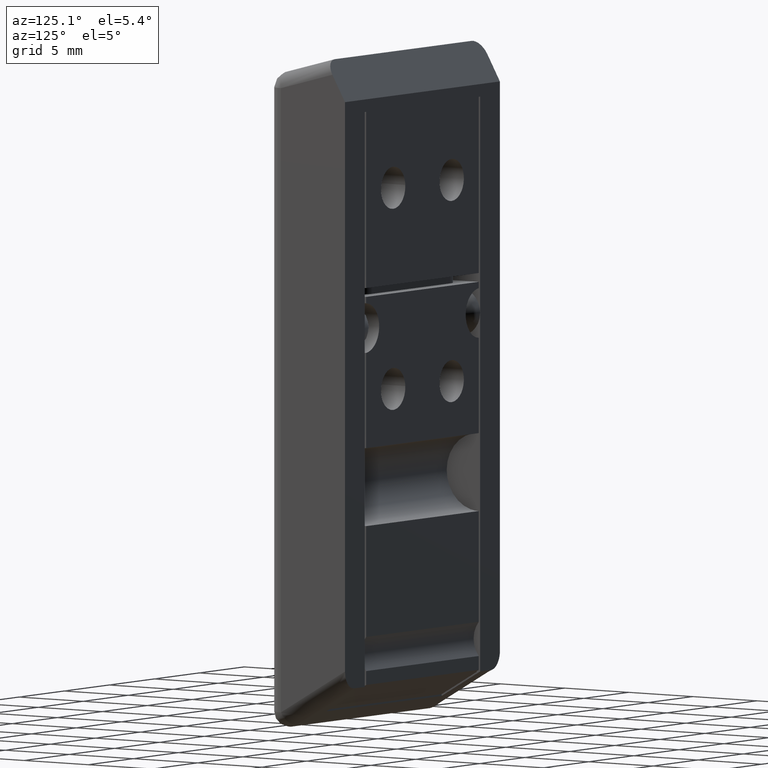
[diagram: clean part render]
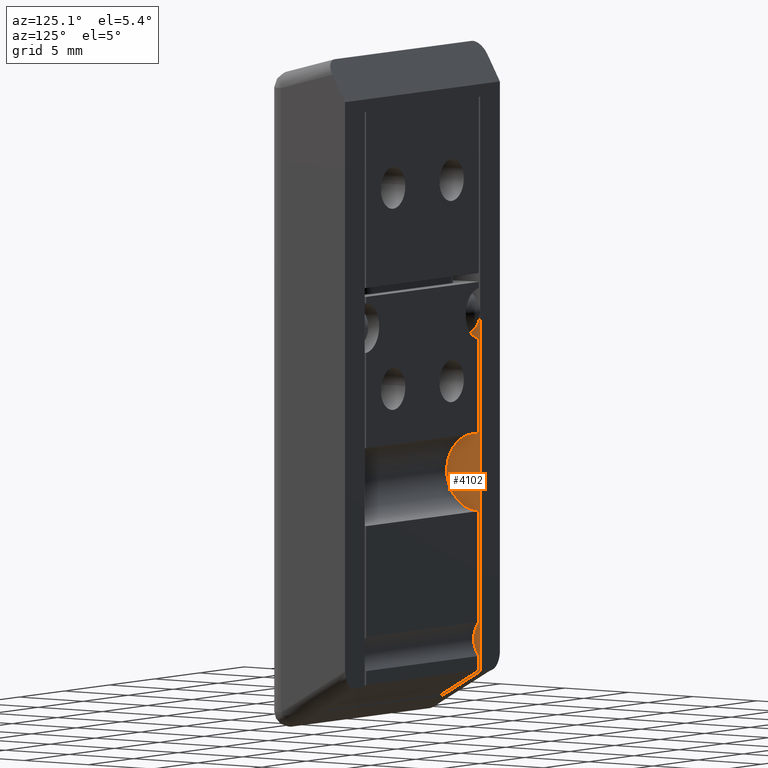
[diagram: same view with one face highlighted and labeled with its STEP entity id]
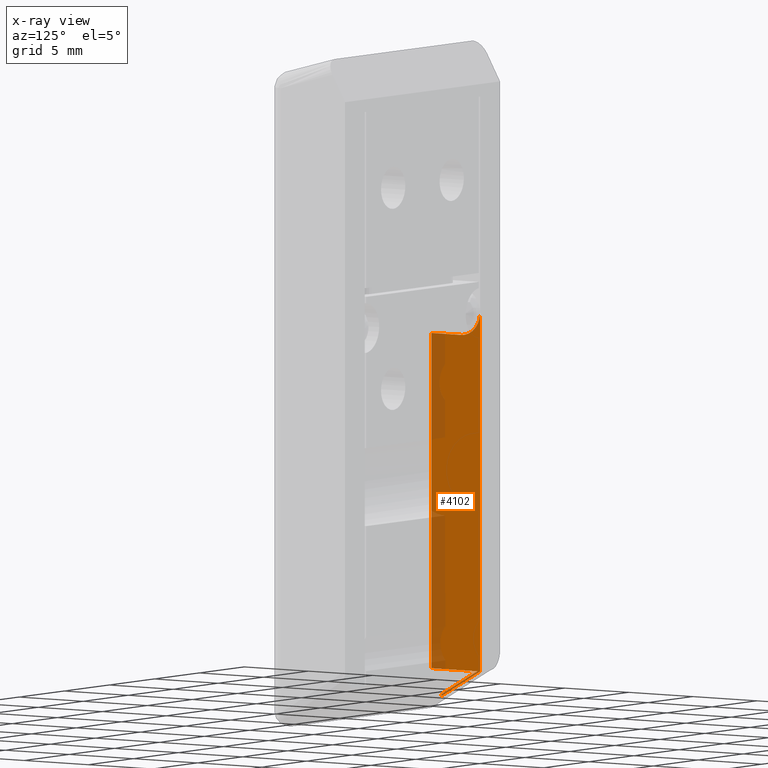
[diagram: x-ray of the same camera — body ghosted, the highlighted face saturated]
A machine part, auxiliary view. The second image highlights one B-rep face of the part: STEP entity #4102.
The next image is the same camera in x-ray: the body ghosted, the highlighted face saturated — about 20% of this face is hidden behind the body in this view.
In plain terms, the highlighted face is a freeform B-spline surface patch.
Its self-contained STEP definition (entity closure, byte-faithful):
#2244=CARTESIAN_POINT('',(-6.400000000000000,-3.0,1.115469207054490));
#2245=VERTEX_POINT('',#2244);
#2246=CARTESIAN_POINT('',(-6.400000000000000,-3.0,1.000000000000066));
#2247=VERTEX_POINT('',#2246);
#2248=CARTESIAN_POINT('',(-6.400000000000000,-3.0,1.115469207054490));
#2249=CARTESIAN_POINT('',(-6.400000000000000,-3.0,1.000000000000066));
#2250=QUASI_UNIFORM_CURVE('',1,(#2248,#2249),.UNSPECIFIED.,.F.,.U.);
#2251=EDGE_CURVE('',#2245,#2247,#2250,.T.);
#2295=CARTESIAN_POINT('',(-6.400000000000000,-0.200004400209750,2.732000000000000));
#2296=VERTEX_POINT('',#2295);
#2297=CARTESIAN_POINT('',(-6.400000000000000,-0.200004400209750,2.732000000000000));
#2298=CARTESIAN_POINT('',(-6.400000000000000,-3.0,1.115469207054490));
#2299=QUASI_UNIFORM_CURVE('',1,(#2297,#2298),.UNSPECIFIED.,.F.,.U.);
#2300=EDGE_CURVE('',#2296,#2245,#2299,.T.);
#2774=CARTESIAN_POINT('',(-6.400000000000000,-1.499999999999946,24.231999999999999));
#2775=VERTEX_POINT('',#2774);
#2793=CARTESIAN_POINT('',(-6.400000000000000,-1.136868E-013,25.731999999999999));
#2794=VERTEX_POINT('',#2793);
#2795=CARTESIAN_POINT('',(-6.400000000000000,-1.136868E-013,25.731999999999999));
#2796=CARTESIAN_POINT('',(-6.400000000000000,5.399327E-014,24.231999999999996));
#2797=CARTESIAN_POINT('',(-6.400000000000000,-1.499999999999946,24.231999999999999));
#2805=(BOUNDED_CURVE()B_SPLINE_CURVE(2,(#2795,#2796,#2797),.UNSPECIFIED.,.F.,.U.)CURVE()GEOMETRIC_REPRESENTATION_ITEM()QUASI_UNIFORM_CURVE()RATIONAL_B_SPLINE_CURVE((1.0,0.707106781186548,1.0))REPRESENTATION_ITEM(''));
#2806=EDGE_CURVE('',#2794,#2775,#2805,.T.);
#2842=CARTESIAN_POINT('',(-6.400000000000000,-3.800000000000000,24.231999999999999));
#2843=VERTEX_POINT('',#2842);
#2844=CARTESIAN_POINT('',(-6.400000000000000,-3.800000000000000,24.231999999999999));
#2845=CARTESIAN_POINT('',(-6.400000000000000,-1.499999999999946,24.231999999999999));
#2846=QUASI_UNIFORM_CURVE('',1,(#2844,#2845),.UNSPECIFIED.,.F.,.U.);
#2847=EDGE_CURVE('',#2843,#2775,#2846,.T.);
#3945=CARTESIAN_POINT('',(-6.400000000000000,0.0,2.732000000000000));
#3946=VERTEX_POINT('',#3945);
#3952=CARTESIAN_POINT('',(-6.400000000000000,-3.0,1.000000000000066));
#3953=CARTESIAN_POINT('',(-6.400000000000000,0.0,2.732000000000000));
#3954=QUASI_UNIFORM_CURVE('',1,(#3952,#3953),.UNSPECIFIED.,.F.,.U.);
#3955=EDGE_CURVE('',#2247,#3946,#3954,.T.);
#3971=CARTESIAN_POINT('',(-6.400000000000000,-1.136868E-013,25.731999999999999));
#3972=CARTESIAN_POINT('',(-6.400000000000000,0.0,2.732000000000000));
#3973=QUASI_UNIFORM_CURVE('',1,(#3971,#3972),.UNSPECIFIED.,.F.,.U.);
#3974=EDGE_CURVE('',#2794,#3946,#3973,.T.);
#4077=CARTESIAN_POINT('',(-6.400000000000000,-3.989809956963181,26.967363816397231));
#4078=CARTESIAN_POINT('',(-6.400000000000000,0.189810092861771,26.967363816397231));
#4079=CARTESIAN_POINT('',(-6.400000000000000,-3.989809956963181,-0.235364037518465));
#4080=CARTESIAN_POINT('',(-6.400000000000000,0.189810092861771,-0.235364037518465));
#4081=B_SPLINE_SURFACE_WITH_KNOTS('',1,1,((#4077,#4079),(#4078,#4080)),.UNSPECIFIED.,.F.,.F.,.U.,(2,2),(2,2),(0.0,4.179620049824953),(0.0,27.202727853915690),.UNSPECIFIED.);
#4082=ORIENTED_EDGE('',*,*,#3955,.T.);
#4083=ORIENTED_EDGE('',*,*,#3974,.F.);
#4084=ORIENTED_EDGE('',*,*,#2806,.T.);
#4085=ORIENTED_EDGE('',*,*,#2847,.F.);
#4086=CARTESIAN_POINT('',(-6.400000000000000,-3.800000000000000,2.732000000000000));
#4087=VERTEX_POINT('',#4086);
#4088=CARTESIAN_POINT('',(-6.400000000000000,-3.800000000000000,2.732000000000000));
#4089=CARTESIAN_POINT('',(-6.400000000000000,-3.800000000000000,24.231999999999999));
#4090=QUASI_UNIFORM_CURVE('',1,(#4088,#4089),.UNSPECIFIED.,.F.,.U.);
#4091=EDGE_CURVE('',#4087,#2843,#4090,.T.);
#4092=ORIENTED_EDGE('',*,*,#4091,.F.);
#4093=CARTESIAN_POINT('',(-6.400000000000000,-0.200004400209750,2.732000000000000));
#4094=CARTESIAN_POINT('',(-6.400000000000000,-3.800000000000000,2.732000000000000));
#4095=QUASI_UNIFORM_CURVE('',1,(#4093,#4094),.UNSPECIFIED.,.F.,.U.);
#4096=EDGE_CURVE('',#2296,#4087,#4095,.T.);
#4097=ORIENTED_EDGE('',*,*,#4096,.F.);
#4098=ORIENTED_EDGE('',*,*,#2300,.T.);
#4099=ORIENTED_EDGE('',*,*,#2251,.T.);
#4100=EDGE_LOOP('',(#4082,#4083,#4084,#4085,#4092,#4097,#4098,#4099));
#4101=FACE_OUTER_BOUND('',#4100,.T.);
#4102=ADVANCED_FACE('',(#4101),#4081,.F.);